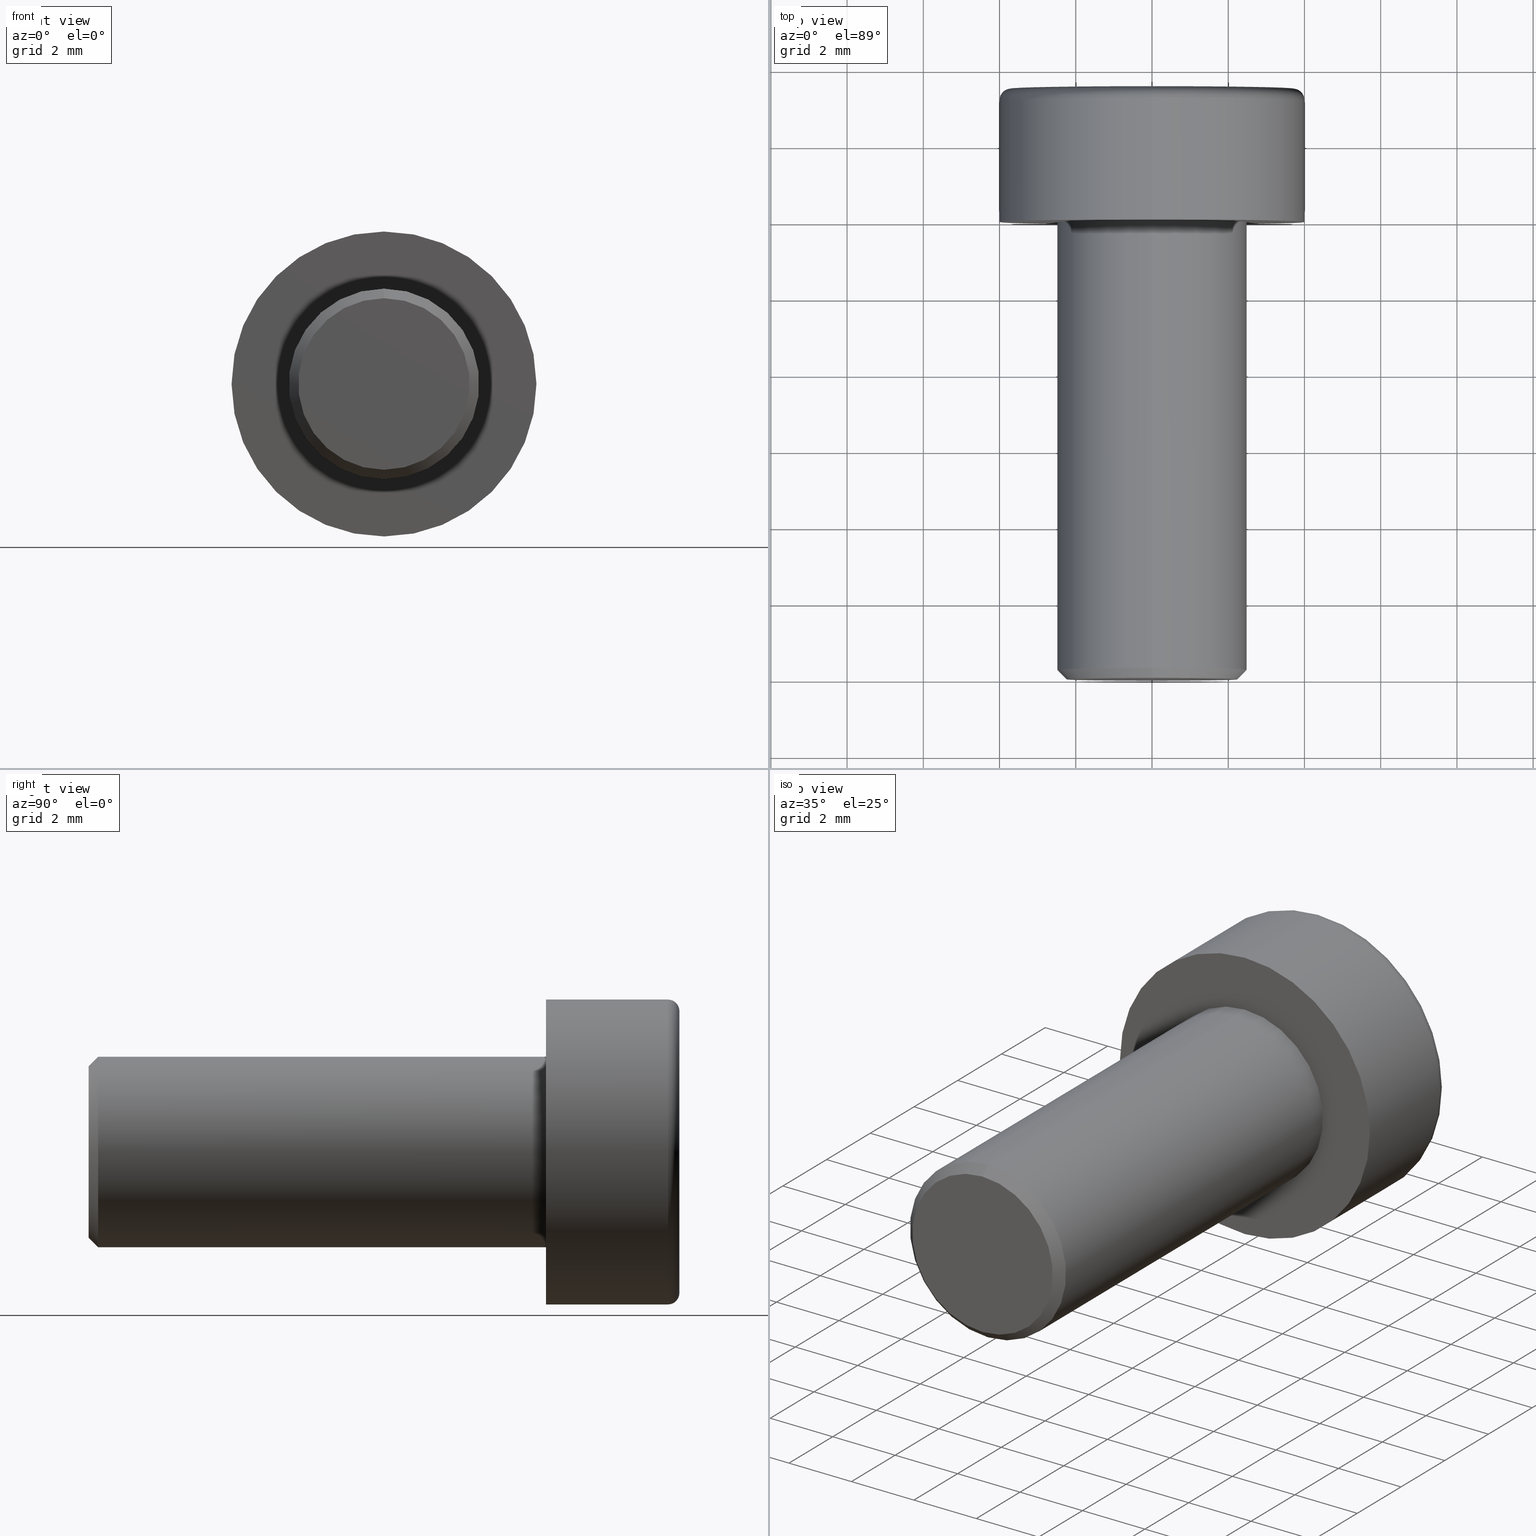
[diagram: canonical four-view strip — front | top / right | iso, engineering-drawing reading convention]
A machine part, canonical four-view strip (front | top / right | iso — engineering-drawing reading convention). The complete STEP part file that produces these views, byte-faithful:
ISO-10303-21;
HEADER;
FILE_DESCRIPTION (( 'STEP AP203' ),
    '1' );
FILE_NAME ('084.301.009.STEP',
    '2015-04-17T10:04:19',
    ( '' ),
    ( '' ),
    'SwSTEP 2.0',
    'SolidWorks 2012',
    '' );
FILE_SCHEMA (( 'CONFIG_CONTROL_DESIGN' ));
ENDSEC;

DATA;
#1 = ADVANCED_FACE ( 'NONE', ( #290 ), #406, .T. ) ;
#2 = ADVANCED_FACE ( 'NONE', ( #287, #289 ), #306, .T. ) ;
#3 = VECTOR ( 'NONE', #100, 1000.000000000000000 ) ;
#4 = LINE ( 'NONE', #99, #7 ) ;
#5 = LINE ( 'NONE', #95, #3 ) ;
#6 = VECTOR ( 'NONE', #156, 1000.000000000000100 ) ;
#7 = VECTOR ( 'NONE', #126, 1000.000000000000000 ) ;
#8 = CIRCLE ( 'NONE', #462, 0.2999999999999999300 ) ;
#9 = VECTOR ( 'NONE', #82, 1000.000000000000000 ) ;
#10 = LINE ( 'NONE', #96, #9 ) ;
#11 = CIRCLE ( 'NONE', #463, 4.000000000000000000 ) ;
#12 = PRODUCT_DEFINITION_SHAPE ( 'NONE', 'NONE',  #485 ) ;
#13 = VECTOR ( 'NONE', #177, 1000.000000000000200 ) ;
#14 = LINE ( 'NONE', #171, #13 ) ;
#15 = LINE ( 'NONE', #155, #559 ) ;
#16 = LINE ( 'NONE', #167, #17 ) ;
#17 = VECTOR ( 'NONE', #159, 1000.000000000000000 ) ;
#18 = DIRECTION ( 'NONE',  ( 1.224646799147353200E-016, 0.0000000000000000000, -1.000000000000000000 ) ) ;
#19 = DIRECTION ( 'NONE',  ( 1.000000000000000000, -0.0000000000000000000, 1.224646799147353200E-016 ) ) ;
#20 = CARTESIAN_POINT ( 'NONE',  ( 4.531193156845206200E-016, 3.200000000000000200, -3.700000000000000200 ) ) ;
#21 = DIRECTION ( 'NONE',  ( -0.0000000000000000000, 1.000000000000000000, -0.0000000000000000000 ) ) ;
#22 = DIRECTION ( 'NONE',  ( 0.0000000000000000000, 0.0000000000000000000, 1.000000000000000000 ) ) ;
#23 = APPROVAL_ROLE ( '' ) ;
#24 = APPROVAL_STATUS ( 'not_yet_approved' ) ;
#25 = DATE_TIME_ROLE ( 'classification_date' ) ;
#26 = PERSON_AND_ORGANIZATION_ROLE ( 'classification_officer' ) ;
#27 = SECURITY_CLASSIFICATION_LEVEL ( 'unclassified' ) ;
#28 = PERSON_AND_ORGANIZATION_ROLE ( 'design_supplier' ) ;
#29 = PERSON_AND_ORGANIZATION_ROLE ( 'creator' ) ;
#30 = DIRECTION ( 'NONE',  ( 0.0000000000000000000, 1.000000000000000000, 0.0000000000000000000 ) ) ;
#31 = APPROVAL_ROLE ( '' ) ;
#32 = CARTESIAN_POINT ( 'NONE',  ( 0.0000000000000000000, 3.500000000000000000, 0.0000000000000000000 ) ) ;
#33 = APPROVAL_STATUS ( 'not_yet_approved' ) ;
#34 = DATE_TIME_ROLE ( 'creation_date' ) ;
#35 = PERSON_AND_ORGANIZATION_ROLE ( 'creator' ) ;
#36 = DIRECTION ( 'NONE',  ( -0.0000000000000000000, 1.000000000000000000, -0.0000000000000000000 ) ) ;
#37 = APPROVAL_ROLE ( '' ) ;
#38 = APPROVAL_STATUS ( 'not_yet_approved' ) ;
#39 = APPLICATION_PROTOCOL_DEFINITION ( 'international standard', 'config_control_design', 1994, #40 ) ;
#40 = APPLICATION_CONTEXT ( 'configuration controlled 3d designs of mechanical parts and assemblies' ) ;
#41 = PERSON_AND_ORGANIZATION_ROLE ( 'design_owner' ) ;
#42 = MECHANICAL_CONTEXT ( 'NONE', #47, 'mechanical' ) ;
#43 = DIRECTION ( 'NONE',  ( 1.000000000000000000, 0.0000000000000000000, 0.0000000000000000000 ) ) ;
#44 = DIRECTION ( 'NONE',  ( 0.0000000000000000000, 0.0000000000000000000, 1.000000000000000000 ) ) ;
#45 = CARTESIAN_POINT ( 'NONE',  ( 0.0000000000000000000, 0.0000000000000000000, 0.0000000000000000000 ) ) ;
#46 = DIRECTION ( 'NONE',  ( 0.0000000000000000000, 0.0000000000000000000, 1.000000000000000000 ) ) ;
#47 = APPLICATION_CONTEXT ( 'configuration controlled 3d designs of mechanical parts and assemblies' ) ;
#48 = DIRECTION ( 'NONE',  ( -0.0000000000000000000, -1.000000000000000000, -0.0000000000000000000 ) ) ;
#49 = CARTESIAN_POINT ( 'NONE',  ( -1.154700538379250400, 3.500000000000000000, 2.000000000000000900 ) ) ;
#50 = APPLICATION_PROTOCOL_DEFINITION ( 'international standard', 'config_control_design', 1994, #47 ) ;
#51 =( NAMED_UNIT ( * ) SI_UNIT ( $, .STERADIAN. ) SOLID_ANGLE_UNIT ( ) );
#52 = CARTESIAN_POINT ( 'NONE',  ( 0.0000000000000000000, 3.200000000000000200, 0.0000000000000000000 ) ) ;
#53 =( NAMED_UNIT ( * ) PLANE_ANGLE_UNIT ( ) SI_UNIT ( $, .RADIAN. ) );
#54 = CARTESIAN_POINT ( 'NONE',  ( 0.0000000000000000000, -12.00000000000000000, 2.500000000000000000 ) ) ;
#55 = DIRECTION ( 'NONE',  ( -1.000000000000000000, 0.0000000000000000000, 0.0000000000000000000 ) ) ;
#56 =( LENGTH_UNIT ( ) NAMED_UNIT ( * ) SI_UNIT ( .MILLI., .METRE. ) );
#57 = DIRECTION ( 'NONE',  ( -0.4999999999999999400, 0.0000000000000000000, 0.8660254037844387100 ) ) ;
#58 = CARTESIAN_POINT ( 'NONE',  ( 1.154700538379250800, 3.500000000000000000, 2.000000000000000900 ) ) ;
#59 = DIRECTION ( 'NONE',  ( -0.8660254037844387100, 0.0000000000000000000, -0.4999999999999999400 ) ) ;
#60 = CARTESIAN_POINT ( 'NONE',  ( 2.309401076758502900, 1.500000000000000000, 4.821375040128190100E-016 ) ) ;
#61 = PLANE ( 'NONE',  #482 ) ;
#62 = DIRECTION ( 'NONE',  ( 0.5000000000000001100, 0.0000000000000000000, -0.8660254037844386000 ) ) ;
#63 = DIRECTION ( 'NONE',  ( 0.8660254037844386000, 0.0000000000000000000, 0.5000000000000001100 ) ) ;
#64 = PLANE ( 'NONE',  #480 ) ;
#65 = DIRECTION ( 'NONE',  ( 1.000000000000000000, 0.0000000000000000000, 0.0000000000000000000 ) ) ;
#66 = DIRECTION ( 'NONE',  ( -0.0000000000000000000, 0.0000000000000000000, 1.000000000000000000 ) ) ;
#67 = CARTESIAN_POINT ( 'NONE',  ( -1.154700538379254100, 1.500000000000000000, -1.999999999999998700 ) ) ;
#68 = PLANE ( 'NONE',  #479 ) ;
#69 = DIRECTION ( 'NONE',  ( -0.5000000000000002200, 0.0000000000000000000, -0.8660254037844386000 ) ) ;
#70 = DIRECTION ( 'NONE',  ( 0.8660254037844386000, 0.0000000000000000000, -0.5000000000000002200 ) ) ;
#71 = CARTESIAN_POINT ( 'NONE',  ( 1.154700538379250800, 1.500000000000000000, 2.000000000000000900 ) ) ;
#72 = PLANE ( 'NONE',  #478 ) ;
#73 = DIRECTION ( 'NONE',  ( -1.000000000000000000, 0.0000000000000000000, 1.877893248421447300E-016 ) ) ;
#74 = DIRECTION ( 'NONE',  ( -1.877893248421447300E-016, 0.0000000000000000000, -1.000000000000000000 ) ) ;
#75 = CARTESIAN_POINT ( 'NONE',  ( -1.154700538379250400, 1.500000000000000000, 2.000000000000000900 ) ) ;
#76 = CARTESIAN_POINT ( 'NONE',  ( 2.309401076758502900, 1.500000000000000000, 4.821375040128190100E-016 ) ) ;
#77 = CARTESIAN_POINT ( 'NONE',  ( 0.0000000000000000000, 3.200000000000000200, 3.700000000000000200 ) ) ;
#78 = PLANE ( 'NONE',  #477 ) ;
#79 = CARTESIAN_POINT ( 'NONE',  ( -1.154700538379254100, 1.500000000000000000, -1.999999999999998700 ) ) ;
#80 = CARTESIAN_POINT ( 'NONE',  ( 0.0000000000000000000, -12.00000000000000000, 0.0000000000000000000 ) ) ;
#81 = DIRECTION ( 'NONE',  ( -0.0000000000000000000, 1.000000000000000000, -0.0000000000000000000 ) ) ;
#82 = DIRECTION ( 'NONE',  ( -0.0000000000000000000, -1.000000000000000000, -0.0000000000000000000 ) ) ;
#83 = DIRECTION ( 'NONE',  ( 0.0000000000000000000, 0.0000000000000000000, 1.000000000000000000 ) ) ;
#84 = CARTESIAN_POINT ( 'NONE',  ( 3.061616997868383100E-016, 0.0000000000000000000, -2.500000000000000000 ) ) ;
#85 = CARTESIAN_POINT ( 'NONE',  ( 3.061616997868383100E-016, -11.74999999999999600, -2.500000000000000000 ) ) ;
#86 = DIRECTION ( 'NONE',  ( 0.0000000000000000000, 1.000000000000000000, -0.0000000000000000000 ) ) ;
#87 = DIRECTION ( 'NONE',  ( 0.0000000000000000000, 0.0000000000000000000, 1.000000000000000000 ) ) ;
#88 = CARTESIAN_POINT ( 'NONE',  ( -1.154700538379250400, 1.500000000000000000, 2.000000000000000900 ) ) ;
#89 = CARTESIAN_POINT ( 'NONE',  ( 1.154700538379251200, 1.500000000000000000, -1.999999999999999100 ) ) ;
#90 = PLANE ( 'NONE',  #475 ) ;
#91 = DIRECTION ( 'NONE',  ( 0.0000000000000000000, 1.000000000000000000, 0.0000000000000000000 ) ) ;
#92 = DIRECTION ( 'NONE',  ( -0.0000000000000000000, -1.000000000000000000, -0.0000000000000000000 ) ) ;
#93 = CARTESIAN_POINT ( 'NONE',  ( 0.0000000000000000000, 0.0000000000000000000, 0.0000000000000000000 ) ) ;
#94 = DIRECTION ( 'NONE',  ( 0.5000000000000003300, 0.0000000000000000000, 0.8660254037844384900 ) ) ;
#95 = CARTESIAN_POINT ( 'NONE',  ( 1.154700538379251200, 3.500000000000000000, -1.999999999999999100 ) ) ;
#96 = CARTESIAN_POINT ( 'NONE',  ( 0.0000000000000000000, 3.500000000000000000, -4.000000000000000000 ) ) ;
#97 = DIRECTION ( 'NONE',  ( -0.8660254037844384900, 0.0000000000000000000, 0.5000000000000003300 ) ) ;
#98 = DIRECTION ( 'NONE',  ( 0.0000000000000000000, 0.0000000000000000000, -1.000000000000000000 ) ) ;
#99 = CARTESIAN_POINT ( 'NONE',  ( 4.898587196589412800E-016, 3.500000000000000000, 4.000000000000000000 ) ) ;
#100 = DIRECTION ( 'NONE',  ( -1.000000000000000000, 0.0000000000000000000, 1.877893248421447300E-016 ) ) ;
#101 = DIRECTION ( 'NONE',  ( 0.0000000000000000000, -1.000000000000000000, 0.0000000000000000000 ) ) ;
#102 = DIRECTION ( 'NONE',  ( 0.0000000000000000000, 0.0000000000000000000, 1.000000000000000000 ) ) ;
#103 = CARTESIAN_POINT ( 'NONE',  ( 0.0000000000000000000, 0.0000000000000000000, 0.0000000000000000000 ) ) ;
#104 = CARTESIAN_POINT ( 'NONE',  ( 0.0000000000000000000, -12.00000000000000000, 0.0000000000000000000 ) ) ;
#105 = CARTESIAN_POINT ( 'NONE',  ( -2.309401076758504300, 1.500000000000000000, -1.722390880164080500E-015 ) ) ;
#106 = DIRECTION ( 'NONE',  ( 0.0000000000000000000, 0.0000000000000000000, 1.000000000000000000 ) ) ;
#107 = CARTESIAN_POINT ( 'NONE',  ( -1.154700538379254100, 3.500000000000000000, -1.999999999999998700 ) ) ;
#108 = DIRECTION ( 'NONE',  ( -0.4999999999999998900, 0.0000000000000000000, 0.8660254037844386000 ) ) ;
#109 = DIRECTION ( 'NONE',  ( 0.0000000000000000000, 0.0000000000000000000, -1.000000000000000000 ) ) ;
#110 = DIRECTION ( 'NONE',  ( 0.0000000000000000000, 1.000000000000000000, 0.0000000000000000000 ) ) ;
#111 = CARTESIAN_POINT ( 'NONE',  ( 0.0000000000000000000, -11.74999999999999600, 0.0000000000000000000 ) ) ;
#112 = PLANE ( 'NONE',  #474 ) ;
#113 = CARTESIAN_POINT ( 'NONE',  ( -2.309401076758504300, 1.500000000000000000, -2.006582980830638000E-015 ) ) ;
#114 = DIRECTION ( 'NONE',  ( 0.5000000000000003300, 0.0000000000000000000, 0.8660254037844384900 ) ) ;
#115 = CARTESIAN_POINT ( 'NONE',  ( 0.0000000000000000000, -12.00000000000000000, 0.0000000000000000000 ) ) ;
#116 = CARTESIAN_POINT ( 'NONE',  ( -2.309401076758504300, 1.500000000000000000, -1.722390880164080500E-015 ) ) ;
#117 = DIRECTION ( 'NONE',  ( 0.0000000000000000000, 1.000000000000000000, 0.0000000000000000000 ) ) ;
#118 = DIRECTION ( 'NONE',  ( -0.0000000000000000000, 1.000000000000000000, -0.0000000000000000000 ) ) ;
#119 = CARTESIAN_POINT ( 'NONE',  ( -1.154700538379250400, 1.500000000000000000, 2.000000000000000900 ) ) ;
#120 = DIRECTION ( 'NONE',  ( 0.0000000000000000000, -0.0000000000000000000, -1.000000000000000000 ) ) ;
#121 = DIRECTION ( 'NONE',  ( 1.000000000000000000, 0.0000000000000000000, 0.0000000000000000000 ) ) ;
#122 = DIRECTION ( 'NONE',  ( 0.0000000000000000000, -1.000000000000000000, 0.0000000000000000000 ) ) ;
#123 = DIRECTION ( 'NONE',  ( 0.0000000000000000000, 0.0000000000000000000, 1.000000000000000000 ) ) ;
#124 = CARTESIAN_POINT ( 'NONE',  ( -1.154700538379250400, 1.500000000000000000, 2.000000000000000900 ) ) ;
#125 = DIRECTION ( 'NONE',  ( -0.0000000000000000000, 1.000000000000000000, -0.0000000000000000000 ) ) ;
#126 = DIRECTION ( 'NONE',  ( -0.0000000000000000000, -1.000000000000000000, -0.0000000000000000000 ) ) ;
#127 = PLANE ( 'NONE',  #459 ) ;
#128 = CARTESIAN_POINT ( 'NONE',  ( 1.154700538379250800, 1.500000000000000000, 2.000000000000000900 ) ) ;
#129 = DIRECTION ( 'NONE',  ( 0.5000000000000001100, 0.0000000000000000000, -0.8660254037844386000 ) ) ;
#130 = CARTESIAN_POINT ( 'NONE',  ( 1.154700538379250800, 1.500000000000000000, 2.000000000000000900 ) ) ;
#131 = DIRECTION ( 'NONE',  ( -0.0000000000000000000, 1.000000000000000000, -0.0000000000000000000 ) ) ;
#132 = CARTESIAN_POINT ( 'NONE',  ( 2.309401076758502900, 1.500000000000000000, 4.821375040128190100E-016 ) ) ;
#133 = CARTESIAN_POINT ( 'NONE',  ( 0.0000000000000000000, -12.00000000000000000, 0.0000000000000000000 ) ) ;
#134 = CARTESIAN_POINT ( 'NONE',  ( 0.0000000000000000000, -12.00000000000000000, 0.0000000000000000000 ) ) ;
#135 = DIRECTION ( 'NONE',  ( 0.0000000000000000000, 1.000000000000000000, 0.0000000000000000000 ) ) ;
#136 = DIRECTION ( 'NONE',  ( -0.5000000000000001100, 0.0000000000000000000, -0.8660254037844384900 ) ) ;
#137 = CARTESIAN_POINT ( 'NONE',  ( 2.309401076758502900, 1.500000000000000000, 4.821375040128190100E-016 ) ) ;
#138 = DIRECTION ( 'NONE',  ( -0.0000000000000000000, 1.000000000000000000, -0.0000000000000000000 ) ) ;
#139 = CARTESIAN_POINT ( 'NONE',  ( 0.0000000000000000000, -12.00000000000000000, 0.0000000000000000000 ) ) ;
#140 = DIRECTION ( 'NONE',  ( 0.0000000000000000000, 0.0000000000000000000, 1.000000000000000000 ) ) ;
#141 = CARTESIAN_POINT ( 'NONE',  ( 1.154700538379251200, 1.500000000000000000, -1.999999999999999100 ) ) ;
#142 = DIRECTION ( 'NONE',  ( -1.000000000000000000, 0.0000000000000000000, 1.877893248421447300E-016 ) ) ;
#143 = CARTESIAN_POINT ( 'NONE',  ( 1.154700538379251200, 1.500000000000000000, -1.999999999999999100 ) ) ;
#144 = DIRECTION ( 'NONE',  ( -0.0000000000000000000, 1.000000000000000000, -0.0000000000000000000 ) ) ;
#145 = DIRECTION ( 'NONE',  ( -0.4999999999999998900, 0.0000000000000000000, 0.8660254037844386000 ) ) ;
#146 = CARTESIAN_POINT ( 'NONE',  ( -1.154700538379254100, 1.500000000000000000, -1.999999999999998700 ) ) ;
#147 = DIRECTION ( 'NONE',  ( 0.0000000000000000000, 0.0000000000000000000, 1.000000000000000000 ) ) ;
#148 = DIRECTION ( 'NONE',  ( 0.0000000000000000000, 1.000000000000000000, 0.0000000000000000000 ) ) ;
#149 = CARTESIAN_POINT ( 'NONE',  ( 0.0000000000000000000, 3.500000000000000000, 0.0000000000000000000 ) ) ;
#150 = CARTESIAN_POINT ( 'NONE',  ( -1.154700538379254100, 1.500000000000000000, -1.999999999999998700 ) ) ;
#151 = DIRECTION ( 'NONE',  ( 0.0000000000000000000, 0.0000000000000000000, 1.000000000000000000 ) ) ;
#152 = DIRECTION ( 'NONE',  ( -0.0000000000000000000, 1.000000000000000000, -0.0000000000000000000 ) ) ;
#153 = DIRECTION ( 'NONE',  ( 0.0000000000000000000, 0.0000000000000000000, 1.000000000000000000 ) ) ;
#154 = CARTESIAN_POINT ( 'NONE',  ( 0.0000000000000000000, -12.00000000000000000, 2.249999999999998700 ) ) ;
#155 = CARTESIAN_POINT ( 'NONE',  ( -2.309401076758504300, 1.500000000000000000, -1.722390880164080500E-015 ) ) ;
#156 = DIRECTION ( 'NONE',  ( 0.5000000000000003300, 0.0000000000000000000, 0.8660254037844384900 ) ) ;
#157 = DIRECTION ( 'NONE',  ( -0.0000000000000000000, 1.000000000000000000, -0.0000000000000000000 ) ) ;
#158 = CARTESIAN_POINT ( 'NONE',  ( 0.0000000000000000000, 3.200000000000000200, 0.0000000000000000000 ) ) ;
#159 = DIRECTION ( 'NONE',  ( 1.000000000000000000, 0.0000000000000000000, 0.0000000000000000000 ) ) ;
#160 = DIRECTION ( 'NONE',  ( 0.5000000000000001100, 0.0000000000000000000, -0.8660254037844386000 ) ) ;
#161 = CARTESIAN_POINT ( 'NONE',  ( -2.309401076758504300, 3.500000000000000000, -1.722390880164080500E-015 ) ) ;
#162 = DIRECTION ( 'NONE',  ( 0.0000000000000000000, 0.0000000000000000000, 1.000000000000000000 ) ) ;
#163 = DIRECTION ( 'NONE',  ( 0.0000000000000000000, 1.000000000000000000, 0.0000000000000000000 ) ) ;
#164 = CARTESIAN_POINT ( 'NONE',  ( 0.0000000000000000000, 0.0000000000000000000, 0.0000000000000000000 ) ) ;
#165 = CARTESIAN_POINT ( 'NONE',  ( 0.0000000000000000000, 3.500000000000000000, 0.0000000000000000000 ) ) ;
#166 = CARTESIAN_POINT ( 'NONE',  ( 1.154700538379250800, 3.500000000000000000, 2.000000000000000900 ) ) ;
#167 = CARTESIAN_POINT ( 'NONE',  ( -1.154700538379250400, 3.500000000000000000, 2.000000000000000900 ) ) ;
#168 = CARTESIAN_POINT ( 'NONE',  ( 0.0000000000000000000, 0.0000000000000000000, 0.0000000000000000000 ) ) ;
#169 = DIRECTION ( 'NONE',  ( 0.0000000000000000000, 1.000000000000000000, 0.0000000000000000000 ) ) ;
#170 = DIRECTION ( 'NONE',  ( -0.0000000000000000000, -1.000000000000000000, -0.0000000000000000000 ) ) ;
#171 = CARTESIAN_POINT ( 'NONE',  ( 2.309401076758502900, 3.500000000000000000, 4.821375040128190100E-016 ) ) ;
#172 = DIRECTION ( 'NONE',  ( 0.0000000000000000000, 0.0000000000000000000, -1.000000000000000000 ) ) ;
#173 = CARTESIAN_POINT ( 'NONE',  ( 0.0000000000000000000, 3.500000000000000000, 0.0000000000000000000 ) ) ;
#174 = DIRECTION ( 'NONE',  ( -0.0000000000000000000, -1.000000000000000000, -0.0000000000000000000 ) ) ;
#175 = DIRECTION ( 'NONE',  ( 0.0000000000000000000, 1.000000000000000000, 0.0000000000000000000 ) ) ;
#176 = CARTESIAN_POINT ( 'NONE',  ( 0.0000000000000000000, -11.74999999999999600, 0.0000000000000000000 ) ) ;
#177 = DIRECTION ( 'NONE',  ( -0.5000000000000001100, 0.0000000000000000000, -0.8660254037844384900 ) ) ;
#178 = DIRECTION ( 'NONE',  ( 0.0000000000000000000, -0.0000000000000000000, 1.000000000000000000 ) ) ;
#179 = DIRECTION ( 'NONE',  ( 0.0000000000000000000, 0.0000000000000000000, -1.000000000000000000 ) ) ;
#180 = DIRECTION ( 'NONE',  ( 0.0000000000000000000, -1.000000000000000000, 0.0000000000000000000 ) ) ;
#181 = CARTESIAN_POINT ( 'NONE',  ( 0.0000000000000000000, -12.00000000000000000, 0.0000000000000000000 ) ) ;
#182 = DIRECTION ( 'NONE',  ( 0.0000000000000000000, 1.000000000000000000, 0.0000000000000000000 ) ) ;
#183 = DIRECTION ( 'NONE',  ( 0.0000000000000000000, 0.0000000000000000000, -1.000000000000000000 ) ) ;
#184 = PLANE ( 'NONE',  #452 ) ;
#185 = DIRECTION ( 'NONE',  ( 0.0000000000000000000, 0.0000000000000000000, 1.000000000000000000 ) ) ;
#186 = DIRECTION ( 'NONE',  ( 0.0000000000000000000, 0.7071067811865505700, 0.7071067811865444600 ) ) ;
#187 = CARTESIAN_POINT ( 'NONE',  ( 0.0000000000000000000, 3.500000000000000000, 3.700000000000000200 ) ) ;
#188 = CARTESIAN_POINT ( 'NONE',  ( 2.908536147974963200E-016, -12.00000000000000000, -2.249999999999998700 ) ) ;
#189 = CARTESIAN_POINT ( 'NONE',  ( 0.0000000000000000000, -12.00000000000000000, 2.249999999999998700 ) ) ;
#190 = DIRECTION ( 'NONE',  ( 8.659560562354895900E-017, 0.7071067811865505700, -0.7071067811865444600 ) ) ;
#191 = CARTESIAN_POINT ( 'NONE',  ( 2.755455298081542800E-016, -12.00000000000000000, -2.249999999999998700 ) ) ;
#192 = DIRECTION ( 'NONE',  ( 0.0000000000000000000, 0.0000000000000000000, 1.000000000000000000 ) ) ;
#193 = DIRECTION ( 'NONE',  ( -0.0000000000000000000, -1.000000000000000000, -0.0000000000000000000 ) ) ;
#194 = CARTESIAN_POINT ( 'NONE',  ( 1.154700538379251200, 1.500000000000000000, -1.999999999999999100 ) ) ;
#195 = CARTESIAN_POINT ( 'NONE',  ( 2.309401076758502900, 3.500000000000000000, 4.821375040128190100E-016 ) ) ;
#196 = CARTESIAN_POINT ( 'NONE',  ( 0.0000000000000000000, 0.0000000000000000000, 0.0000000000000000000 ) ) ;
#197 = CARTESIAN_POINT ( 'NONE',  ( 3.061616997868383100E-016, -12.00000000000000000, -2.500000000000000000 ) ) ;
#198 = DIRECTION ( 'NONE',  ( 0.0000000000000000000, 0.0000000000000000000, -1.000000000000000000 ) ) ;
#199 = CARTESIAN_POINT ( 'NONE',  ( 0.0000000000000000000, 0.0000000000000000000, 2.500000000000000000 ) ) ;
#200 = CARTESIAN_POINT ( 'NONE',  ( 4.714890176717309500E-016, 3.500000000000000000, -3.700000000000000200 ) ) ;
#201 = DIRECTION ( 'NONE',  ( 0.0000000000000000000, 0.0000000000000000000, 1.000000000000000000 ) ) ;
#202 = CARTESIAN_POINT ( 'NONE',  ( 4.898587196589412800E-016, 3.200000000000000200, 4.000000000000000000 ) ) ;
#203 = DIRECTION ( 'NONE',  ( -0.0000000000000000000, -1.000000000000000000, -0.0000000000000000000 ) ) ;
#204 = CARTESIAN_POINT ( 'NONE',  ( 0.0000000000000000000, 3.200000000000000200, 0.0000000000000000000 ) ) ;
#205 = CARTESIAN_POINT ( 'NONE',  ( 1.154700538379250800, 1.500000000000000000, 2.000000000000000900 ) ) ;
#206 = CARTESIAN_POINT ( 'NONE',  ( 1.154700538379251200, 3.500000000000000000, -1.999999999999999100 ) ) ;
#207 = CARTESIAN_POINT ( 'NONE',  ( -2.309401076758504300, 1.500000000000000000, -1.722390880164080500E-015 ) ) ;
#208 = CARTESIAN_POINT ( 'NONE',  ( -2.309401076758504700, 3.500000000000000000, -1.517883041479706200E-015 ) ) ;
#209 = CIRCLE ( 'NONE', #471, 3.700000000000000200 ) ;
#210 = CIRCLE ( 'NONE', #460, 4.000000000000000000 ) ;
#211 = CIRCLE ( 'NONE', #461, 2.500000000000000000 ) ;
#212 = LINE ( 'NONE', #107, #218 ) ;
#213 = CYLINDRICAL_SURFACE ( 'NONE', #457, 2.500000000000000000 ) ;
#214 = FACE_OUTER_BOUND ( 'NONE', #401, .T. ) ;
#215 = CONICAL_SURFACE ( 'NONE', #456, 2.249999999999998700, 0.7853981633974439500 ) ;
#216 = LINE ( 'NONE', #146, #297 ) ;
#217 = CONICAL_SURFACE ( 'NONE', #458, 2.249999999999998700, 0.7853981633974439500 ) ;
#218 = VECTOR ( 'NONE', #108, 1000.000000000000200 ) ;
#219 = VECTOR ( 'NONE', #142, 1000.000000000000000 ) ;
#220 = LINE ( 'NONE', #137, #224 ) ;
#221 = LINE ( 'NONE', #141, #222 ) ;
#222 = VECTOR ( 'NONE', #138, 1000.000000000000000 ) ;
#223 = LINE ( 'NONE', #132, #226 ) ;
#224 = VECTOR ( 'NONE', #136, 1000.000000000000200 ) ;
#225 = LINE ( 'NONE', #130, #228 ) ;
#226 = VECTOR ( 'NONE', #131, 1000.000000000000000 ) ;
#227 = LINE ( 'NONE', #128, #230 ) ;
#228 = VECTOR ( 'NONE', #129, 1000.000000000000100 ) ;
#229 = LINE ( 'NONE', #124, #232 ) ;
#230 = VECTOR ( 'NONE', #125, 1000.000000000000000 ) ;
#231 = LINE ( 'NONE', #119, #234 ) ;
#232 = VECTOR ( 'NONE', #121, 1000.000000000000000 ) ;
#233 = LINE ( 'NONE', #116, #236 ) ;
#234 = VECTOR ( 'NONE', #118, 1000.000000000000000 ) ;
#235 = CIRCLE ( 'NONE', #472, 2.500000000000000000 ) ;
#236 = VECTOR ( 'NONE', #114, 1000.000000000000100 ) ;
#237 = CIRCLE ( 'NONE', #473, 2.249999999999998700 ) ;
#238 = FACE_OUTER_BOUND ( 'NONE', #404, .T. ) ;
#239 = FACE_OUTER_BOUND ( 'NONE', #407, .T. ) ;
#240 = FACE_OUTER_BOUND ( 'NONE', #405, .T. ) ;
#241 = FACE_OUTER_BOUND ( 'NONE', #402, .T. ) ;
#242 = FACE_OUTER_BOUND ( 'NONE', #403, .T. ) ;
#243 = FACE_OUTER_BOUND ( 'NONE', #346, .T. ) ;
#244 = CYLINDRICAL_SURFACE ( 'NONE', #476, 2.500000000000000000 ) ;
#245 = FACE_OUTER_BOUND ( 'NONE', #409, .T. ) ;
#246 = FACE_OUTER_BOUND ( 'NONE', #349, .T. ) ;
#247 = SHAPE_DEFINITION_REPRESENTATION ( #12, #553 ) ;
#248 = ORGANIZATION ( 'NON SPECIFICATO', 'NON SPECIFICATO', '' ) ;
#249 = PERSON_AND_ORGANIZATION ( #356, #248 ) ;
#250 = PERSON_AND_ORGANIZATION ( #356, #248 ) ;
#251 = APPROVAL_PERSON_ORGANIZATION ( #250, #486, #37 ) ;
#252 = COORDINATED_UNIVERSAL_TIME_OFFSET ( 1, 0, .AHEAD. ) ;
#253 = LOCAL_TIME ( 12, 4, 19.00000000000000000, #252 ) ;
#254 = CALENDAR_DATE ( 2015, 17, 4 ) ;
#255 = DATE_AND_TIME ( #254, #253 ) ;
#256 = APPROVAL_DATE_TIME ( #255, #486 ) ;
#257 = PERSON_AND_ORGANIZATION ( #356, #248 ) ;
#258 = COORDINATED_UNIVERSAL_TIME_OFFSET ( 1, 0, .AHEAD. ) ;
#259 = LOCAL_TIME ( 12, 4, 19.00000000000000000, #258 ) ;
#260 = CALENDAR_DATE ( 2015, 17, 4 ) ;
#261 = DATE_AND_TIME ( #260, #259 ) ;
#262 = PERSON_AND_ORGANIZATION ( #356, #248 ) ;
#263 = APPROVAL_PERSON_ORGANIZATION ( #262, #491, #31 ) ;
#264 = COORDINATED_UNIVERSAL_TIME_OFFSET ( 1, 0, .AHEAD. ) ;
#265 = LOCAL_TIME ( 12, 4, 19.00000000000000000, #264 ) ;
#266 = CALENDAR_DATE ( 2015, 17, 4 ) ;
#267 = DATE_AND_TIME ( #266, #265 ) ;
#268 = APPROVAL_DATE_TIME ( #267, #491 ) ;
#269 = PERSON_AND_ORGANIZATION ( #356, #248 ) ;
#270 = PERSON_AND_ORGANIZATION ( #356, #248 ) ;
#271 = PERSON_AND_ORGANIZATION ( #356, #248 ) ;
#272 = COORDINATED_UNIVERSAL_TIME_OFFSET ( 1, 0, .AHEAD. ) ;
#273 = LOCAL_TIME ( 12, 4, 19.00000000000000000, #272 ) ;
#274 = CALENDAR_DATE ( 2015, 17, 4 ) ;
#275 = DATE_AND_TIME ( #274, #273 ) ;
#276 = PERSON_AND_ORGANIZATION ( #356, #248 ) ;
#277 = APPROVAL_PERSON_ORGANIZATION ( #276, #498, #23 ) ;
#278 = COORDINATED_UNIVERSAL_TIME_OFFSET ( 1, 0, .AHEAD. ) ;
#279 = LOCAL_TIME ( 12, 4, 19.00000000000000000, #278 ) ;
#280 = CALENDAR_DATE ( 2015, 17, 4 ) ;
#281 = DATE_AND_TIME ( #280, #279 ) ;
#282 = APPROVAL_DATE_TIME ( #281, #498 ) ;
#283 = CIRCLE ( 'NONE', #468, 2.249999999999998700 ) ;
#284 = FACE_OUTER_BOUND ( 'NONE', #397, .T. ) ;
#285 = FACE_BOUND ( 'NONE', #400, .T. ) ;
#286 = LINE ( 'NONE', #189, #564 ) ;
#287 = FACE_BOUND ( 'NONE', #398, .T. ) ;
#288 = CIRCLE ( 'NONE', #469, 2.500000000000000000 ) ;
#289 = FACE_OUTER_BOUND ( 'NONE', #399, .T. ) ;
#290 = FACE_OUTER_BOUND ( 'NONE', #408, .T. ) ;
#291 = ORIENTED_EDGE ( 'NONE', *, *, #418, .T. ) ;
#292 = ORIENTED_EDGE ( 'NONE', *, *, #440, .F. ) ;
#293 = ORIENTED_EDGE ( 'NONE', *, *, #419, .F. ) ;
#294 = ORIENTED_EDGE ( 'NONE', *, *, #435, .T. ) ;
#295 = ORIENTED_EDGE ( 'NONE', *, *, #421, .F. ) ;
#296 = CIRCLE ( 'NONE', #465, 0.2999999999999999300 ) ;
#297 = VECTOR ( 'NONE', #145, 1000.000000000000200 ) ;
#298 = CIRCLE ( 'NONE', #464, 3.700000000000000200 ) ;
#299 = CIRCLE ( 'NONE', #466, 4.000000000000000000 ) ;
#300 = VECTOR ( 'NONE', #160, 1000.000000000000100 ) ;
#301 = VECTOR ( 'NONE', #21, 1000.000000000000000 ) ;
#302 = CIRCLE ( 'NONE', #467, 2.500000000000000000 ) ;
#303 = LINE ( 'NONE', #54, #301 ) ;
#304 = DIRECTION ( 'NONE',  ( 0.0000000000000000000, 0.0000000000000000000, 1.000000000000000000 ) ) ;
#305 = CARTESIAN_POINT ( 'NONE',  ( 4.898587196589412800E-016, 0.0000000000000000000, 4.000000000000000000 ) ) ;
#306 = PLANE ( 'NONE',  #451 ) ;
#307 = DIRECTION ( 'NONE',  ( 0.0000000000000000000, -0.0000000000000000000, 1.000000000000000000 ) ) ;
#308 = DIRECTION ( 'NONE',  ( 0.0000000000000000000, 1.000000000000000000, 0.0000000000000000000 ) ) ;
#309 = CARTESIAN_POINT ( 'NONE',  ( 0.0000000000000000000, 3.500000000000000000, 0.0000000000000000000 ) ) ;
#310 = CARTESIAN_POINT ( 'NONE',  ( -1.154700538379254100, 3.500000000000000000, -1.999999999999998700 ) ) ;
#311 = CARTESIAN_POINT ( 'NONE',  ( 0.0000000000000000000, 3.200000000000000200, 0.0000000000000000000 ) ) ;
#312 = DIRECTION ( 'NONE',  ( 0.0000000000000000000, 1.000000000000000000, 0.0000000000000000000 ) ) ;
#313 = CARTESIAN_POINT ( 'NONE',  ( 0.0000000000000000000, 0.0000000000000000000, -4.000000000000000000 ) ) ;
#314 = CARTESIAN_POINT ( 'NONE',  ( 0.0000000000000000000, -11.74999999999999600, 2.500000000000000000 ) ) ;
#315 = CARTESIAN_POINT ( 'NONE',  ( 0.0000000000000000000, 3.200000000000000200, -4.000000000000000000 ) ) ;
#316 = ORIENTED_EDGE ( 'NONE', *, *, #417, .T. ) ;
#317 = ORIENTED_EDGE ( 'NONE', *, *, #414, .F. ) ;
#318 = ORIENTED_EDGE ( 'NONE', *, *, #412, .T. ) ;
#319 = VERTEX_POINT ( 'NONE', #208 ) ;
#320 = VERTEX_POINT ( 'NONE', #315 ) ;
#321 = ORIENTED_EDGE ( 'NONE', *, *, #430, .F. ) ;
#322 = VERTEX_POINT ( 'NONE', #314 ) ;
#323 = VERTEX_POINT ( 'NONE', #310 ) ;
#324 = VERTEX_POINT ( 'NONE', #49 ) ;
#325 = VERTEX_POINT ( 'NONE', #313 ) ;
#326 = VERTEX_POINT ( 'NONE', #58 ) ;
#327 = ORIENTED_EDGE ( 'NONE', *, *, #429, .F. ) ;
#328 = VERTEX_POINT ( 'NONE', #305 ) ;
#329 = VERTEX_POINT ( 'NONE', #154 ) ;
#330 = VERTEX_POINT ( 'NONE', #85 ) ;
#331 = VERTEX_POINT ( 'NONE', #207 ) ;
#332 = VERTEX_POINT ( 'NONE', #79 ) ;
#333 = VERTEX_POINT ( 'NONE', #199 ) ;
#334 = VERTEX_POINT ( 'NONE', #84 ) ;
#335 = VERTEX_POINT ( 'NONE', #88 ) ;
#336 = VERTEX_POINT ( 'NONE', #60 ) ;
#337 = VERTEX_POINT ( 'NONE', #202 ) ;
#338 = VERTEX_POINT ( 'NONE', #206 ) ;
#339 = VERTEX_POINT ( 'NONE', #205 ) ;
#340 = VERTEX_POINT ( 'NONE', #200 ) ;
#341 = ORIENTED_EDGE ( 'NONE', *, *, #422, .T. ) ;
#342 = VERTEX_POINT ( 'NONE', #195 ) ;
#343 = VERTEX_POINT ( 'NONE', #194 ) ;
#344 = VERTEX_POINT ( 'NONE', #188 ) ;
#345 = EDGE_LOOP ( 'NONE', ( #386, #374 ) ) ;
#346 = EDGE_LOOP ( 'NONE', ( #506, #526, #518, #395 ) ) ;
#347 = VERTEX_POINT ( 'NONE', #187 ) ;
#348 = EDGE_LOOP ( 'NONE', ( #371, #382, #363, #391 ) ) ;
#349 = EDGE_LOOP ( 'NONE', ( #527, #519, #520, #532 ) ) ;
#350 = EDGE_LOOP ( 'NONE', ( #341, #316, #318, #375 ) ) ;
#351 = EDGE_LOOP ( 'NONE', ( #321, #380 ) ) ;
#352 = ADVANCED_FACE ( 'NONE', ( #542, #285 ), #184, .F. ) ;
#353 = ADVANCED_FACE ( 'NONE', ( #284 ), #543, .T. ) ;
#354 = DESIGN_CONTEXT ( 'detailed design', #40, 'design' ) ;
#355 = PRODUCT ( '084.301.009', '084.301.009', '', ( #42 ) ) ;
#356 = PERSON ( 'NON SPECIFICATO', 'NON SPECIFICATO', 'NON SPECIFICATO', ('NON SPECIFICATO'), ('NON SPECIFICATO'), ('NON SPECIFICATO') ) ;
#357 = ADVANCED_FACE ( 'NONE', ( #549 ), #548, .T. ) ;
#358 = ADVANCED_FACE ( 'NONE', ( #551 ), #546, .T. ) ;
#359 = ADVANCED_FACE ( 'NONE', ( #545 ), #213, .T. ) ;
#360 = ADVANCED_FACE ( 'NONE', ( #550 ), #215, .T. ) ;
#361 = ADVANCED_FACE ( 'NONE', ( #544 ), #127, .T. ) ;
#362 = ADVANCED_FACE ( 'NONE', ( #214 ), #217, .T. ) ;
#363 = ORIENTED_EDGE ( 'NONE', *, *, #420, .F. ) ;
#364 = ORIENTED_EDGE ( 'NONE', *, *, #447, .F. ) ;
#365 = ORIENTED_EDGE ( 'NONE', *, *, #437, .T. ) ;
#366 = ORIENTED_EDGE ( 'NONE', *, *, #429, .T. ) ;
#367 = CLOSED_SHELL ( 'NONE', ( #360, #359, #358, #357, #352, #353, #2, #1, #541, #537, #538, #540, #539, #534, #535, #536, #361, #362 ) ) ;
#368 = ORIENTED_EDGE ( 'NONE', *, *, #424, .T. ) ;
#369 = ORIENTED_EDGE ( 'NONE', *, *, #426, .F. ) ;
#370 = ORIENTED_EDGE ( 'NONE', *, *, #423, .T. ) ;
#371 = ORIENTED_EDGE ( 'NONE', *, *, #422, .F. ) ;
#372 = ORIENTED_EDGE ( 'NONE', *, *, #434, .T. ) ;
#373 = ORIENTED_EDGE ( 'NONE', *, *, #444, .F. ) ;
#374 = ORIENTED_EDGE ( 'NONE', *, *, #427, .T. ) ;
#375 = ORIENTED_EDGE ( 'NONE', *, *, #416, .F. ) ;
#376 = ORIENTED_EDGE ( 'NONE', *, *, #436, .T. ) ;
#377 = ORIENTED_EDGE ( 'NONE', *, *, #414, .T. ) ;
#378 = ORIENTED_EDGE ( 'NONE', *, *, #446, .F. ) ;
#379 = ORIENTED_EDGE ( 'NONE', *, *, #448, .F. ) ;
#380 = ORIENTED_EDGE ( 'NONE', *, *, #412, .F. ) ;
#381 = ORIENTED_EDGE ( 'NONE', *, *, #425, .F. ) ;
#382 = ORIENTED_EDGE ( 'NONE', *, *, #421, .T. ) ;
#383 = ORIENTED_EDGE ( 'NONE', *, *, #423, .F. ) ;
#384 = ORIENTED_EDGE ( 'NONE', *, *, #431, .T. ) ;
#385 = ORIENTED_EDGE ( 'NONE', *, *, #447, .T. ) ;
#386 = ORIENTED_EDGE ( 'NONE', *, *, #449, .T. ) ;
#387 = ORIENTED_EDGE ( 'NONE', *, *, #448, .T. ) ;
#388 = ORIENTED_EDGE ( 'NONE', *, *, #449, .F. ) ;
#389 = ORIENTED_EDGE ( 'NONE', *, *, #428, .T. ) ;
#390 = ORIENTED_EDGE ( 'NONE', *, *, #425, .T. ) ;
#391 = ORIENTED_EDGE ( 'NONE', *, *, #418, .F. ) ;
#392 = ORIENTED_EDGE ( 'NONE', *, *, #428, .F. ) ;
#393 = ORIENTED_EDGE ( 'NONE', *, *, #427, .F. ) ;
#394 = ORIENTED_EDGE ( 'NONE', *, *, #426, .T. ) ;
#395 = ORIENTED_EDGE ( 'NONE', *, *, #440, .T. ) ;
#396 = EDGE_LOOP ( 'NONE', ( #389, #390, #368, #383 ) ) ;
#397 = EDGE_LOOP ( 'NONE', ( #524, #517, #514, #521 ) ) ;
#398 = EDGE_LOOP ( 'NONE', ( #513, #511, #512, #509, #507, #508 ) ) ;
#399 = EDGE_LOOP ( 'NONE', ( #505, #294 ) ) ;
#400 = EDGE_LOOP ( 'NONE', ( #317, #516 ) ) ;
#401 = EDGE_LOOP ( 'NONE', ( #369, #388, #366, #379 ) ) ;
#402 = EDGE_LOOP ( 'NONE', ( #384, #292, #529, #531 ) ) ;
#403 = EDGE_LOOP ( 'NONE', ( #525, #373, #503, #515 ) ) ;
#404 = EDGE_LOOP ( 'NONE', ( #365, #385, #410, #504, #528, #522 ) ) ;
#405 = EDGE_LOOP ( 'NONE', ( #381, #387, #370, #377 ) ) ;
#406 = TOROIDAL_SURFACE ( 'NONE', #450, 3.700000000000000200, 0.2999999999999999900 ) ;
#407 = EDGE_LOOP ( 'NONE', ( #372, #378, #364, #376 ) ) ;
#408 = EDGE_LOOP ( 'NONE', ( #295, #293, #291, #523 ) ) ;
#409 = EDGE_LOOP ( 'NONE', ( #510, #530, #502, #533 ) ) ;
#410 = ORIENTED_EDGE ( 'NONE', *, *, #445, .T. ) ;
#411 = EDGE_LOOP ( 'NONE', ( #393, #394, #392, #327 ) ) ;
#412 = EDGE_CURVE ( 'NONE', #328, #325, #210, .T. ) ;
#413 = EDGE_CURVE ( 'NONE', #323, #319, #212, .T. ) ;
#414 = EDGE_CURVE ( 'NONE', #333, #334, #211, .T. ) ;
#415 = EDGE_CURVE ( 'NONE', #338, #323, #5, .T. ) ;
#416 = EDGE_CURVE ( 'NONE', #320, #325, #10, .T. ) ;
#417 = EDGE_CURVE ( 'NONE', #337, #328, #4, .T. ) ;
#418 = EDGE_CURVE ( 'NONE', #337, #347, #8, .T. ) ;
#419 = EDGE_CURVE ( 'NONE', #337, #320, #11, .T. ) ;
#420 = EDGE_CURVE ( 'NONE', #347, #340, #298, .T. ) ;
#421 = EDGE_CURVE ( 'NONE', #320, #340, #296, .T. ) ;
#422 = EDGE_CURVE ( 'NONE', #320, #337, #299, .T. ) ;
#423 = EDGE_CURVE ( 'NONE', #322, #333, #303, .T. ) ;
#424 = EDGE_CURVE ( 'NONE', #334, #333, #302, .T. ) ;
#425 = EDGE_CURVE ( 'NONE', #330, #334, #558, .T. ) ;
#426 = EDGE_CURVE ( 'NONE', #344, #330, #562, .T. ) ;
#427 = EDGE_CURVE ( 'NONE', #344, #329, #283, .T. ) ;
#428 = EDGE_CURVE ( 'NONE', #322, #330, #288, .T. ) ;
#429 = EDGE_CURVE ( 'NONE', #329, #322, #286, .T. ) ;
#430 = EDGE_CURVE ( 'NONE', #325, #328, #563, .T. ) ;
#431 = EDGE_CURVE ( 'NONE', #342, #338, #14, .T. ) ;
#432 = EDGE_CURVE ( 'NONE', #326, #342, #557, .T. ) ;
#433 = EDGE_CURVE ( 'NONE', #324, #326, #16, .T. ) ;
#434 = EDGE_CURVE ( 'NONE', #319, #324, #555, .T. ) ;
#435 = EDGE_CURVE ( 'NONE', #340, #347, #209, .T. ) ;
#436 = EDGE_CURVE ( 'NONE', #331, #319, #15, .T. ) ;
#437 = EDGE_CURVE ( 'NONE', #332, #331, #216, .T. ) ;
#438 = EDGE_CURVE ( 'NONE', #332, #323, #556, .T. ) ;
#439 = EDGE_CURVE ( 'NONE', #343, #332, #547, .T. ) ;
#440 = EDGE_CURVE ( 'NONE', #343, #338, #221, .T. ) ;
#441 = EDGE_CURVE ( 'NONE', #336, #343, #220, .T. ) ;
#442 = EDGE_CURVE ( 'NONE', #336, #342, #223, .T. ) ;
#443 = EDGE_CURVE ( 'NONE', #339, #336, #225, .T. ) ;
#444 = EDGE_CURVE ( 'NONE', #339, #326, #227, .T. ) ;
#445 = EDGE_CURVE ( 'NONE', #335, #339, #229, .T. ) ;
#446 = EDGE_CURVE ( 'NONE', #335, #324, #231, .T. ) ;
#447 = EDGE_CURVE ( 'NONE', #331, #335, #233, .T. ) ;
#448 = EDGE_CURVE ( 'NONE', #330, #322, #235, .T. ) ;
#449 = EDGE_CURVE ( 'NONE', #329, #344, #237, .T. ) ;
#450 = AXIS2_PLACEMENT_3D ( 'NONE', #311, #312, #304 ) ;
#451 = AXIS2_PLACEMENT_3D ( 'NONE', #309, #308, #307 ) ;
#452 = AXIS2_PLACEMENT_3D ( 'NONE', #168, #182, #178 ) ;
#453 = AXIS2_PLACEMENT_3D ( 'NONE', #158, #169, #151 ) ;
#454 = AXIS2_PLACEMENT_3D ( 'NONE', #173, #174, #198 ) ;
#455 = AXIS2_PLACEMENT_3D ( 'NONE', #165, #170, #183 ) ;
#456 = AXIS2_PLACEMENT_3D ( 'NONE', #133, #135, #140 ) ;
#457 = AXIS2_PLACEMENT_3D ( 'NONE', #139, #152, #153 ) ;
#458 = AXIS2_PLACEMENT_3D ( 'NONE', #115, #117, #123 ) ;
#459 = AXIS2_PLACEMENT_3D ( 'NONE', #134, #122, #120 ) ;
#460 = AXIS2_PLACEMENT_3D ( 'NONE', #103, #91, #102 ) ;
#461 = AXIS2_PLACEMENT_3D ( 'NONE', #93, #92, #87 ) ;
#462 = AXIS2_PLACEMENT_3D ( 'NONE', #77, #55, #185 ) ;
#463 = AXIS2_PLACEMENT_3D ( 'NONE', #52, #48, #46 ) ;
#464 = AXIS2_PLACEMENT_3D ( 'NONE', #32, #30, #22 ) ;
#465 = AXIS2_PLACEMENT_3D ( 'NONE', #20, #19, #18 ) ;
#466 = AXIS2_PLACEMENT_3D ( 'NONE', #204, #203, #201 ) ;
#467 = AXIS2_PLACEMENT_3D ( 'NONE', #196, #193, #192 ) ;
#468 = AXIS2_PLACEMENT_3D ( 'NONE', #181, #180, #179 ) ;
#469 = AXIS2_PLACEMENT_3D ( 'NONE', #176, #175, #172 ) ;
#470 = AXIS2_PLACEMENT_3D ( 'NONE', #164, #163, #162 ) ;
#471 = AXIS2_PLACEMENT_3D ( 'NONE', #149, #148, #147 ) ;
#472 = AXIS2_PLACEMENT_3D ( 'NONE', #111, #110, #109 ) ;
#473 = AXIS2_PLACEMENT_3D ( 'NONE', #104, #101, #98 ) ;
#474 = AXIS2_PLACEMENT_3D ( 'NONE', #105, #97, #94 ) ;
#475 = AXIS2_PLACEMENT_3D ( 'NONE', #113, #86, #83 ) ;
#476 = AXIS2_PLACEMENT_3D ( 'NONE', #80, #81, #106 ) ;
#477 = AXIS2_PLACEMENT_3D ( 'NONE', #89, #74, #73 ) ;
#478 = AXIS2_PLACEMENT_3D ( 'NONE', #76, #70, #69 ) ;
#479 = AXIS2_PLACEMENT_3D ( 'NONE', #75, #66, #65 ) ;
#480 = AXIS2_PLACEMENT_3D ( 'NONE', #71, #63, #62 ) ;
#481 =( GEOMETRIC_REPRESENTATION_CONTEXT ( 3 ) GLOBAL_UNCERTAINTY_ASSIGNED_CONTEXT ( ( #554 ) ) GLOBAL_UNIT_ASSIGNED_CONTEXT ( ( #56, #53, #51 ) ) REPRESENTATION_CONTEXT ( 'NONE', 'WORKASPACE' ) );
#482 = AXIS2_PLACEMENT_3D ( 'NONE', #67, #59, #57 ) ;
#483 = AXIS2_PLACEMENT_3D ( 'NONE', #45, #44, #43 ) ;
#484 = CC_DESIGN_PERSON_AND_ORGANIZATION_ASSIGNMENT ( #249, #41, ( #355 ) ) ;
#485 = PRODUCT_DEFINITION ( 'NON CONOSCIUTO', '', #490, #354 ) ;
#486 = APPROVAL ( #38, 'NON SPECIFICATO' ) ;
#487 = CC_DESIGN_APPROVAL ( #486, ( #485 ) ) ;
#488 = CC_DESIGN_PERSON_AND_ORGANIZATION_ASSIGNMENT ( #257, #35, ( #485 ) ) ;
#489 = CC_DESIGN_DATE_AND_TIME_ASSIGNMENT ( #261, #34, ( #485 ) ) ;
#490 = PRODUCT_DEFINITION_FORMATION_WITH_SPECIFIED_SOURCE ( 'TUTTO', '', #355, .NOT_KNOWN. ) ;
#491 = APPROVAL ( #33, 'NON SPECIFICATO' ) ;
#492 = CC_DESIGN_APPROVAL ( #491, ( #490 ) ) ;
#493 = CC_DESIGN_PERSON_AND_ORGANIZATION_ASSIGNMENT ( #269, #29, ( #490 ) ) ;
#494 = CC_DESIGN_PERSON_AND_ORGANIZATION_ASSIGNMENT ( #270, #28, ( #490 ) ) ;
#495 = SECURITY_CLASSIFICATION ( '', '', #27 ) ;
#496 = CC_DESIGN_PERSON_AND_ORGANIZATION_ASSIGNMENT ( #271, #26, ( #495 ) ) ;
#497 = CC_DESIGN_DATE_AND_TIME_ASSIGNMENT ( #275, #25, ( #495 ) ) ;
#498 = APPROVAL ( #24, 'NON SPECIFICATO' ) ;
#499 = CC_DESIGN_APPROVAL ( #498, ( #495 ) ) ;
#500 = CC_DESIGN_SECURITY_CLASSIFICATION ( #495, ( #490 ) ) ;
#501 = PRODUCT_RELATED_PRODUCT_CATEGORY ( 'detail', '', ( #355 ) ) ;
#502 = ORIENTED_EDGE ( 'NONE', *, *, #443, .F. ) ;
#503 = ORIENTED_EDGE ( 'NONE', *, *, #445, .F. ) ;
#504 = ORIENTED_EDGE ( 'NONE', *, *, #443, .T. ) ;
#505 = ORIENTED_EDGE ( 'NONE', *, *, #420, .T. ) ;
#506 = ORIENTED_EDGE ( 'NONE', *, *, #415, .T. ) ;
#507 = ORIENTED_EDGE ( 'NONE', *, *, #433, .F. ) ;
#508 = ORIENTED_EDGE ( 'NONE', *, *, #434, .F. ) ;
#509 = ORIENTED_EDGE ( 'NONE', *, *, #432, .F. ) ;
#510 = ORIENTED_EDGE ( 'NONE', *, *, #432, .T. ) ;
#511 = ORIENTED_EDGE ( 'NONE', *, *, #415, .F. ) ;
#512 = ORIENTED_EDGE ( 'NONE', *, *, #431, .F. ) ;
#513 = ORIENTED_EDGE ( 'NONE', *, *, #413, .F. ) ;
#514 = ORIENTED_EDGE ( 'NONE', *, *, #416, .T. ) ;
#515 = ORIENTED_EDGE ( 'NONE', *, *, #446, .T. ) ;
#516 = ORIENTED_EDGE ( 'NONE', *, *, #424, .F. ) ;
#517 = ORIENTED_EDGE ( 'NONE', *, *, #419, .T. ) ;
#518 = ORIENTED_EDGE ( 'NONE', *, *, #439, .F. ) ;
#519 = ORIENTED_EDGE ( 'NONE', *, *, #436, .F. ) ;
#520 = ORIENTED_EDGE ( 'NONE', *, *, #437, .F. ) ;
#521 = ORIENTED_EDGE ( 'NONE', *, *, #430, .T. ) ;
#522 = ORIENTED_EDGE ( 'NONE', *, *, #439, .T. ) ;
#523 = ORIENTED_EDGE ( 'NONE', *, *, #435, .F. ) ;
#524 = ORIENTED_EDGE ( 'NONE', *, *, #417, .F. ) ;
#525 = ORIENTED_EDGE ( 'NONE', *, *, #433, .T. ) ;
#526 = ORIENTED_EDGE ( 'NONE', *, *, #438, .F. ) ;
#527 = ORIENTED_EDGE ( 'NONE', *, *, #413, .T. ) ;
#528 = ORIENTED_EDGE ( 'NONE', *, *, #441, .T. ) ;
#529 = ORIENTED_EDGE ( 'NONE', *, *, #441, .F. ) ;
#530 = ORIENTED_EDGE ( 'NONE', *, *, #442, .F. ) ;
#531 = ORIENTED_EDGE ( 'NONE', *, *, #442, .T. ) ;
#532 = ORIENTED_EDGE ( 'NONE', *, *, #438, .T. ) ;
#533 = ORIENTED_EDGE ( 'NONE', *, *, #444, .T. ) ;
#534 = ADVANCED_FACE ( 'NONE', ( #239 ), #112, .F. ) ;
#535 = ADVANCED_FACE ( 'NONE', ( #238 ), #90, .T. ) ;
#536 = ADVANCED_FACE ( 'NONE', ( #240 ), #244, .T. ) ;
#537 = ADVANCED_FACE ( 'NONE', ( #243 ), #78, .F. ) ;
#538 = ADVANCED_FACE ( 'NONE', ( #241 ), #72, .F. ) ;
#539 = ADVANCED_FACE ( 'NONE', ( #242 ), #68, .F. ) ;
#540 = ADVANCED_FACE ( 'NONE', ( #245 ), #64, .F. ) ;
#541 = ADVANCED_FACE ( 'NONE', ( #246 ), #61, .F. ) ;
#542 = FACE_OUTER_BOUND ( 'NONE', #351, .T. ) ;
#543 = CYLINDRICAL_SURFACE ( 'NONE', #454, 4.000000000000000000 ) ;
#544 = FACE_OUTER_BOUND ( 'NONE', #345, .T. ) ;
#545 = FACE_OUTER_BOUND ( 'NONE', #396, .T. ) ;
#546 = TOROIDAL_SURFACE ( 'NONE', #453, 3.700000000000000200, 0.2999999999999999900 ) ;
#547 = LINE ( 'NONE', #143, #219 ) ;
#548 = CYLINDRICAL_SURFACE ( 'NONE', #455, 4.000000000000000000 ) ;
#549 = FACE_OUTER_BOUND ( 'NONE', #350, .T. ) ;
#550 = FACE_OUTER_BOUND ( 'NONE', #411, .T. ) ;
#551 = FACE_OUTER_BOUND ( 'NONE', #348, .T. ) ;
#552 = MANIFOLD_SOLID_BREP ( 'Smusso1', #367 ) ;
#553 = ADVANCED_BREP_SHAPE_REPRESENTATION ( '084.301.009', ( #552, #483 ), #481 ) ;
#554 = UNCERTAINTY_MEASURE_WITH_UNIT (LENGTH_MEASURE( 1.000000000000000100E-005 ), #56, 'distance_accuracy_value', 'NONE');
#555 = LINE ( 'NONE', #161, #6 ) ;
#556 = LINE ( 'NONE', #150, #565 ) ;
#557 = LINE ( 'NONE', #166, #300 ) ;
#558 = LINE ( 'NONE', #197, #561 ) ;
#559 = VECTOR ( 'NONE', #157, 1000.000000000000000 ) ;
#560 = VECTOR ( 'NONE', #190, 1000.000000000000000 ) ;
#561 = VECTOR ( 'NONE', #36, 1000.000000000000000 ) ;
#562 = LINE ( 'NONE', #191, #560 ) ;
#563 = CIRCLE ( 'NONE', #470, 4.000000000000000000 ) ;
#564 = VECTOR ( 'NONE', #186, 1000.000000000000000 ) ;
#565 = VECTOR ( 'NONE', #144, 1000.000000000000000 ) ;
ENDSEC;
END-ISO-10303-21;
